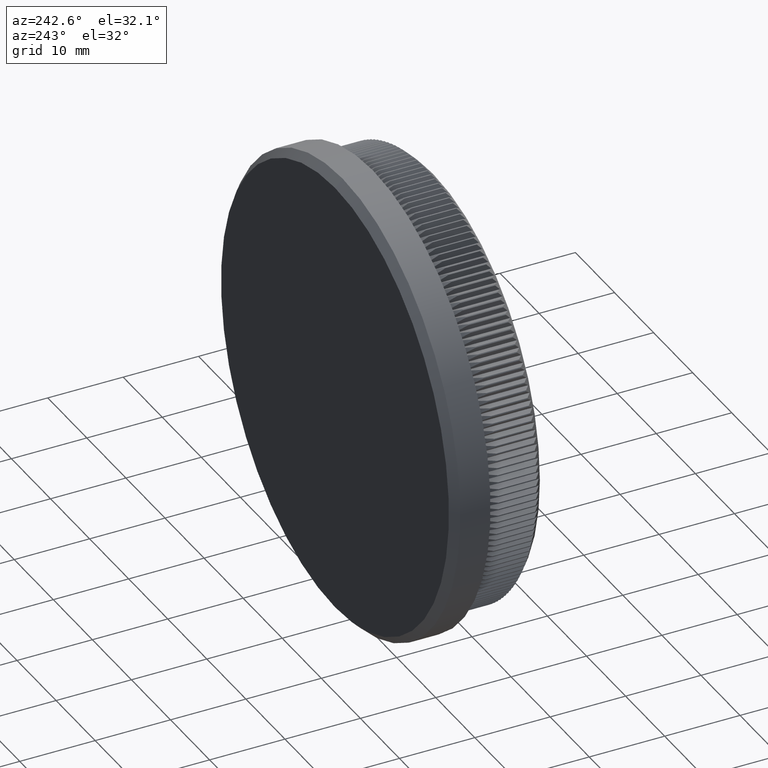
[diagram: clean part render]
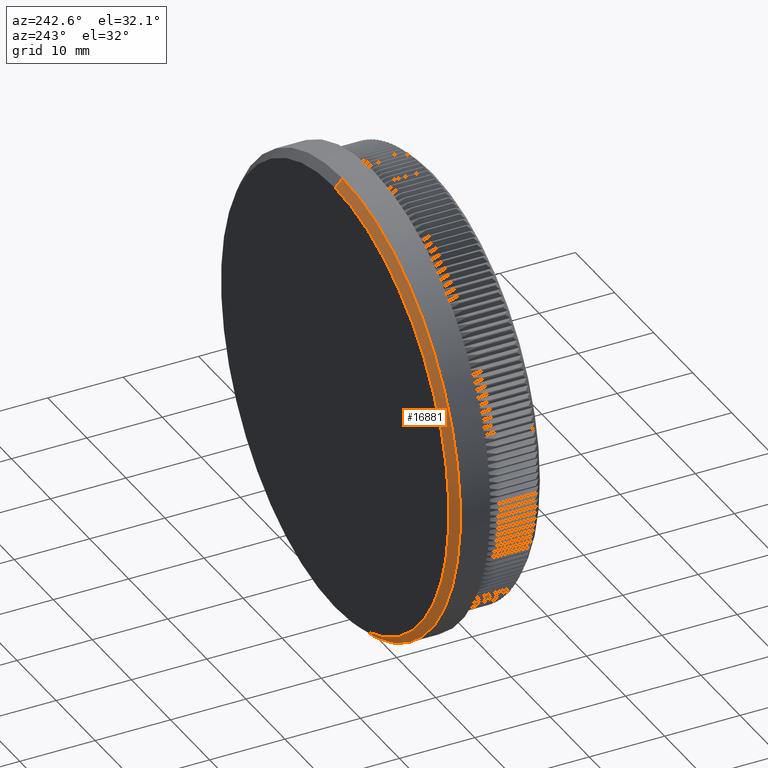
[diagram: same view with one face highlighted and labeled with its STEP entity id]
A machine part, auxiliary view. The second image highlights one B-rep face of the part: STEP entity #16881.
In plain terms, the highlighted conical surface has half-angle 45 deg.
Its self-contained STEP definition (entity closure, byte-faithful):
#1983 = ORIENTED_EDGE ( 'NONE', *, *, #6861, .F. ) ;
#2274 = VERTEX_POINT ( 'NONE', #8741 ) ;
#4514 = ORIENTED_EDGE ( 'NONE', *, *, #4854, .F. ) ;
#4854 = EDGE_CURVE ( 'NONE', #21635, #37366, #11014, .T. ) ;
#6215 = AXIS2_PLACEMENT_3D ( 'NONE', #35183, #8696, #17764 ) ;
#6861 = EDGE_CURVE ( 'NONE', #2274, #34901, #9527, .T. ) ;
#6928 = EDGE_LOOP ( 'NONE', ( #9342, #1983, #12699, #4514 ) ) ;
#8262 = LINE ( 'NONE', #20561, #30573 ) ;
#8696 = DIRECTION ( 'NONE',  ( 0.0000000000000000000, 1.000000000000000000, 0.0000000000000000000 ) ) ;
#8741 = CARTESIAN_POINT ( 'NONE',  ( 0.0000000000000000000, 13.00000000000000000, -29.14999999999998400 ) ) ;
#9342 = ORIENTED_EDGE ( 'NONE', *, *, #28825, .F. ) ;
#9527 = CIRCLE ( 'NONE', #6215, 29.14999999999998400 ) ;
#11014 = CIRCLE ( 'NONE', #37346, 30.14999999999999500 ) ;
#12314 = CARTESIAN_POINT ( 'NONE',  ( 3.631077759471901200E-015, 13.00000000000000000, 29.14999999999998400 ) ) ;
#12699 = ORIENTED_EDGE ( 'NONE', *, *, #28190, .T. ) ;
#13547 = CARTESIAN_POINT ( 'NONE',  ( 0.0000000000000000000, 11.99999999999998800, 0.0000000000000000000 ) ) ;
#14214 = CARTESIAN_POINT ( 'NONE',  ( 3.692310099429269600E-015, 11.99999999999998800, 30.14999999999999500 ) ) ;
#15567 = FACE_OUTER_BOUND ( 'NONE', #6928, .T. ) ;
#16881 = ADVANCED_FACE ( 'NONE', ( #15567 ), #34703, .T. ) ;
#17764 = DIRECTION ( 'NONE',  ( 0.0000000000000000000, 0.0000000000000000000, 1.000000000000000000 ) ) ;
#19071 = AXIS2_PLACEMENT_3D ( 'NONE', #30254, #21774, #33190 ) ;
#19196 = VECTOR ( 'NONE', #20327, 1000.000000000000100 ) ;
#19908 = CARTESIAN_POINT ( 'NONE',  ( 3.692310099429269600E-015, 11.99999999999998800, 30.14999999999999500 ) ) ;
#20327 = DIRECTION ( 'NONE',  ( 8.659560562354932900E-017, -0.7071067811865474600, 0.7071067811865474600 ) ) ;
#20561 = CARTESIAN_POINT ( 'NONE',  ( 0.0000000000000000000, 11.99999999999998800, -30.14999999999999500 ) ) ;
#21635 = VERTEX_POINT ( 'NONE', #19908 ) ;
#21774 = DIRECTION ( 'NONE',  ( -0.0000000000000000000, -1.000000000000000000, -0.0000000000000000000 ) ) ;
#22582 = DIRECTION ( 'NONE',  ( 0.0000000000000000000, 0.0000000000000000000, 1.000000000000000000 ) ) ;
#26017 = LINE ( 'NONE', #14214, #19196 ) ;
#26397 = DIRECTION ( 'NONE',  ( 0.0000000000000000000, -0.7071067811865474600, -0.7071067811865474600 ) ) ;
#28190 = EDGE_CURVE ( 'NONE', #2274, #37366, #8262, .T. ) ;
#28528 = CARTESIAN_POINT ( 'NONE',  ( 0.0000000000000000000, 11.99999999999998800, -30.14999999999999500 ) ) ;
#28825 = EDGE_CURVE ( 'NONE', #34901, #21635, #26017, .T. ) ;
#30254 = CARTESIAN_POINT ( 'NONE',  ( 0.0000000000000000000, 11.99999999999998800, 0.0000000000000000000 ) ) ;
#30573 = VECTOR ( 'NONE', #26397, 1000.000000000000100 ) ;
#33190 = DIRECTION ( 'NONE',  ( 0.0000000000000000000, 0.0000000000000000000, -1.000000000000000000 ) ) ;
#34703 = CONICAL_SURFACE ( 'NONE', #19071, 30.14999999999999500, 0.7853981633974482800 ) ;
#34901 = VERTEX_POINT ( 'NONE', #12314 ) ;
#35183 = CARTESIAN_POINT ( 'NONE',  ( 0.0000000000000000000, 13.00000000000000000, 0.0000000000000000000 ) ) ;
#36663 = DIRECTION ( 'NONE',  ( -0.0000000000000000000, -1.000000000000000000, -0.0000000000000000000 ) ) ;
#37346 = AXIS2_PLACEMENT_3D ( 'NONE', #13547, #36663, #22582 ) ;
#37366 = VERTEX_POINT ( 'NONE', #28528 ) ;